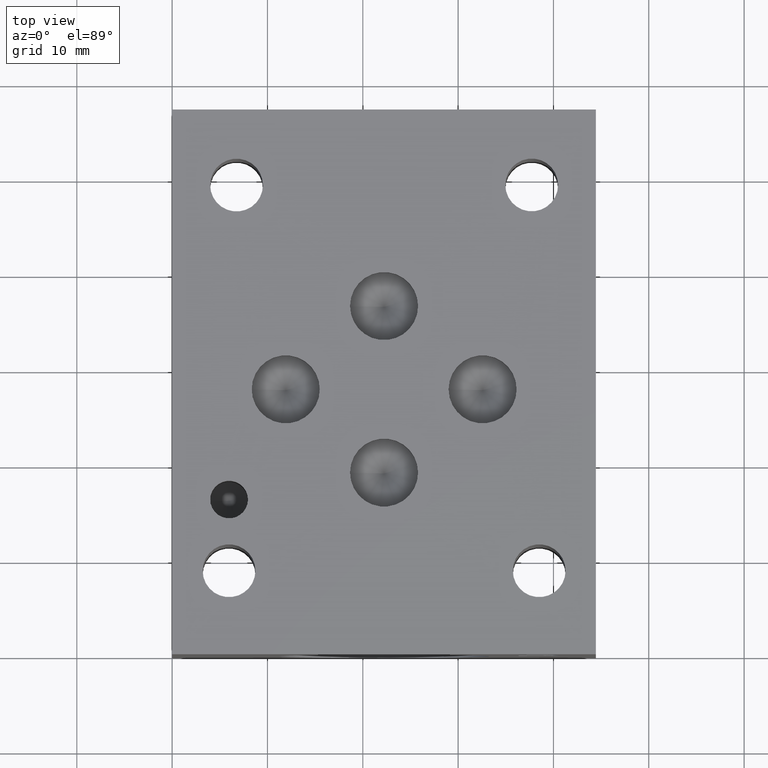
[diagram: clean part render]
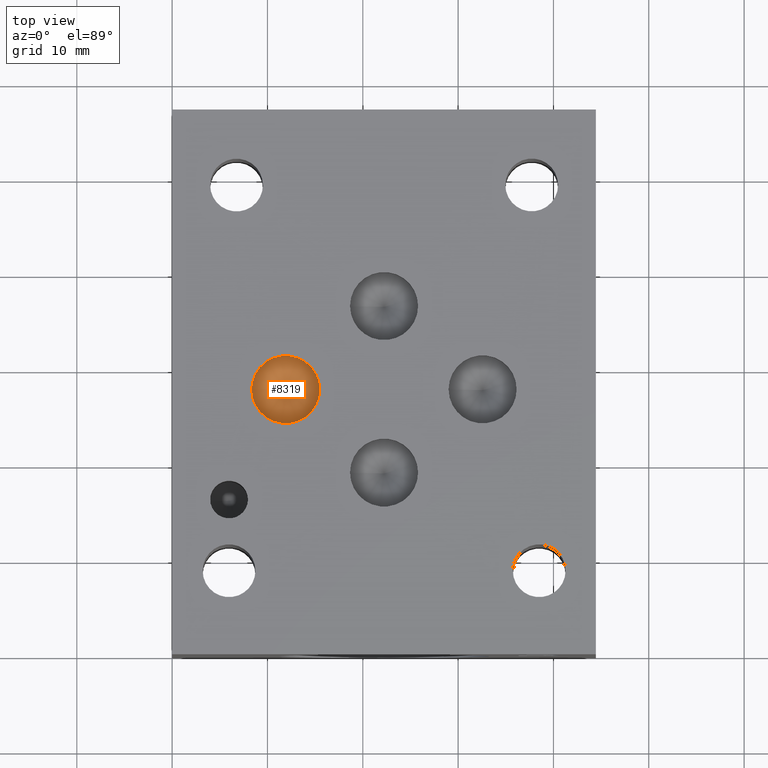
[diagram: same view with one face highlighted and labeled with its STEP entity id]
A machine part, top view. The second image highlights one B-rep face of the part: STEP entity #8319.
In plain terms, the highlighted conical surface has half-angle 60 deg.
Its self-contained STEP definition (entity closure, byte-faithful):
#56=CONICAL_SURFACE('',#8722,1.78435,1.0471975511966);
#113=CIRCLE('',#8723,3.5687);
#889=FACE_OUTER_BOUND('',#1374,.T.);
#1374=EDGE_LOOP('',(#7391,#7392,#7393));
#2253=LINE('',#13995,#3119);
#3119=VECTOR('',#10352,1.78435);
#4065=VERTEX_POINT('',#13992);
#4066=VERTEX_POINT('',#13994);
#5184=EDGE_CURVE('',#4065,#4065,#113,.T.);
#5185=EDGE_CURVE('',#4065,#4066,#2253,.T.);
#7391=ORIENTED_EDGE('',*,*,#5184,.T.);
#7392=ORIENTED_EDGE('',*,*,#5185,.T.);
#7393=ORIENTED_EDGE('',*,*,#5185,.F.);
#8319=ADVANCED_FACE('',(#889),#56,.F.);
#8722=AXIS2_PLACEMENT_3D('',#13991,#10348,#10349);
#8723=AXIS2_PLACEMENT_3D('',#13993,#10350,#10351);
#10348=DIRECTION('center_axis',(0.,0.,1.));
#10349=DIRECTION('ref_axis',(1.,0.,0.));
#10350=DIRECTION('center_axis',(0.,0.,1.));
#10351=DIRECTION('ref_axis',(1.,0.,0.));
#10352=DIRECTION('',(0.866025403784439,1.06057523872491E-16,-0.5));
#13991=CARTESIAN_POINT('Origin',(11.9126,27.7876,22.3094150471715));
#13992=CARTESIAN_POINT('',(8.3439,27.7876,23.33961));
#13993=CARTESIAN_POINT('Origin',(11.9126,27.7876,23.33961));
#13994=CARTESIAN_POINT('',(11.9126,27.7876,21.279220094343));
#13995=CARTESIAN_POINT('',(10.12825,27.7876,22.3094150471715));